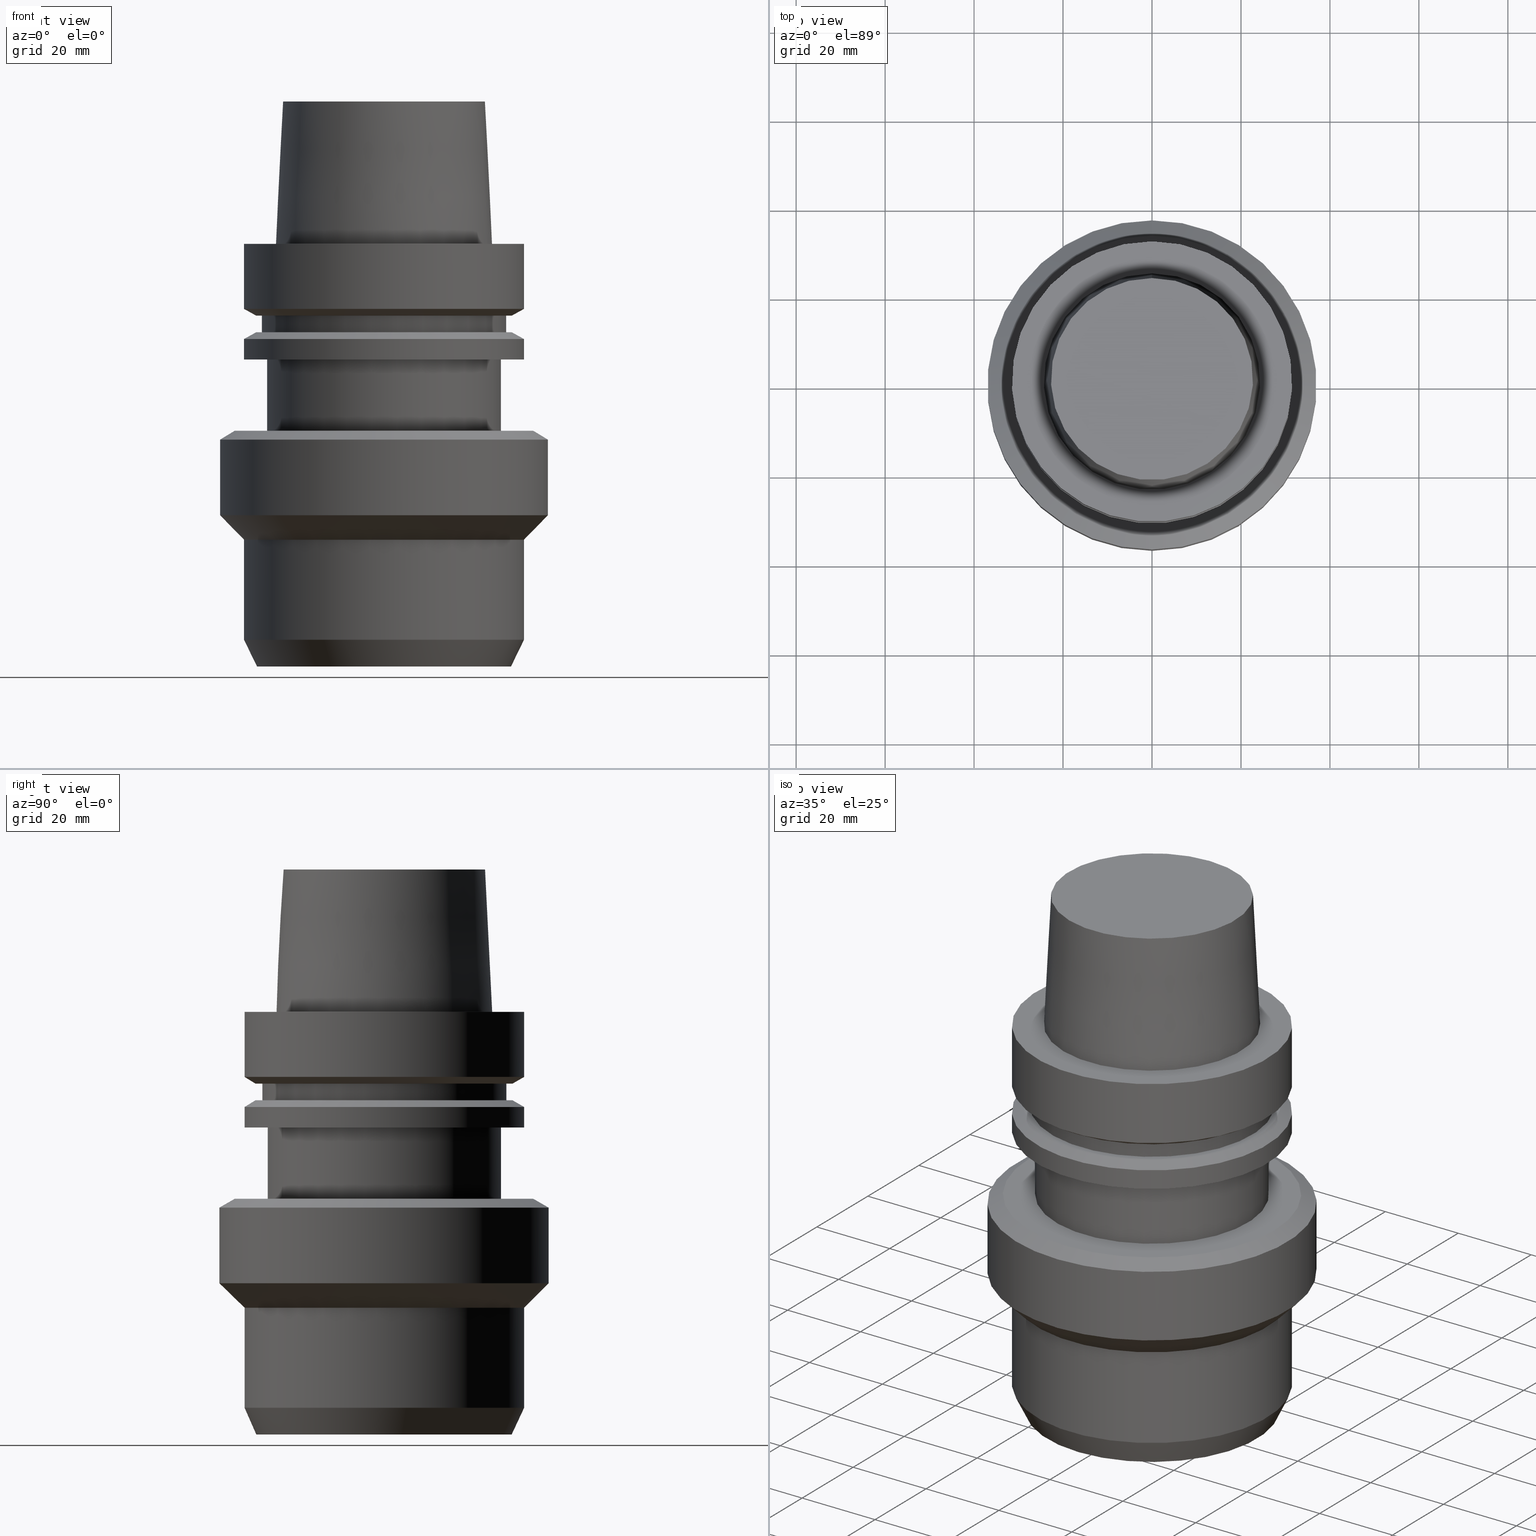
[diagram: canonical four-view strip — front | top / right | iso, engineering-drawing reading convention]
A machine part, canonical four-view strip (front | top / right | iso — engineering-drawing reading convention). The complete STEP part file that produces these views, byte-faithful:
ISO-10303-21;
HEADER;
FILE_DESCRIPTION((''),'1');
FILE_NAME('T:/00_BIG-HP\X2\FF71FF6FFF8CFF9F\X0\2015/\X2\30C030A630F330ED30FC30C930C730FC30BF\X0\/\X2\FF80FF9EFF73FF9DFF9BFF70FF84FF9EFF83FF9EFF70FF80\X0\2015/03_STP\X2\30C730FC30BF\X0\/LINK\X2\7528FF83FF9EFF70FF80FF8EFF99FF80FF9E\X0\/CK\X2\FF8DFF6FFF84FF9E30FBFF71FF78FF7EFF7BFF98\X0\/11_CK\X2\8D85786CFF7DFF84FF9AFF70FF84FF7CFF6CFF9DFF78\X0\/02_CK\X2\8D85786C\X0\ST\X2\7528FF8AFF72FF84FF9EFF9BFF81FF6CFF6FFF78\X0\/HSK-A63-HDC31-95.stp','2017-03-29T05:48:06',(''),(''),'Spatial Interop R21 SP3','Kubotek KeyCreator 2011 V10.0.2 (22737)',' ');
FILE_SCHEMA(('automotive_design'));
ENDSEC;
DATA;
#1=MECHANICAL_DESIGN_GEOMETRIC_PRESENTATION_REPRESENTATION(' ',(#10,#11,#12,#13,#14,#15,#16,#17,#18,#19,#20,#21,#22,#23,#24,#25,#26,#27,#28,#29,#30,#31,#32,#33,#34,#35,#36,#37,#38,#39,#40,#41,#42,#43,#44,#45,#46,#47),#6);
#2=PRODUCT_DEFINITION_CONTEXT('',#48,'design');
#3=APPLICATION_PROTOCOL_DEFINITION('INTERNATIONAL STANDARD','automotive_design',1994,#48);
#4=PRODUCT_CATEGORY_RELATIONSHIP('NONE','NONE',#49,#50);
#5=SHAPE_DEFINITION_REPRESENTATION(#51,#52);
#6= (GEOMETRIC_REPRESENTATION_CONTEXT(3)GLOBAL_UNCERTAINTY_ASSIGNED_CONTEXT((#55))GLOBAL_UNIT_ASSIGNED_CONTEXT((#57,#58,#59))REPRESENTATION_CONTEXT('NONE','WORKSPACE'));
#10=STYLED_ITEM('',(#61,#62),#63);
#11=STYLED_ITEM('',(#64,#65),#66);
#12=STYLED_ITEM('',(#67,#68),#69);
#13=STYLED_ITEM('',(#70,#71),#72);
#14=STYLED_ITEM('',(#73,#74),#75);
#15=STYLED_ITEM('',(#76),#77);
#16=STYLED_ITEM('',(#78,#79),#80);
#17=STYLED_ITEM('',(#81),#82);
#18=STYLED_ITEM('',(#83,#84),#85);
#19=STYLED_ITEM('',(#86),#87);
#20=STYLED_ITEM('',(#88),#89);
#21=STYLED_ITEM('',(#90,#91),#92);
#22=STYLED_ITEM('',(#93),#94);
#23=STYLED_ITEM('',(#95,#96),#97);
#24=STYLED_ITEM('',(#98,#99),#100);
#25=STYLED_ITEM('',(#101),#102);
#26=STYLED_ITEM('',(#103,#104),#105);
#27=STYLED_ITEM('',(#106,#107),#108);
#28=STYLED_ITEM('',(#109),#110);
#29=STYLED_ITEM('',(#111),#112);
#30=STYLED_ITEM('',(#113),#114);
#31=STYLED_ITEM('',(#115),#116);
#32=STYLED_ITEM('',(#117,#118),#119);
#33=STYLED_ITEM('',(#120,#121),#122);
#34=STYLED_ITEM('',(#123,#124),#125);
#35=STYLED_ITEM('',(#126),#127);
#36=STYLED_ITEM('',(#128),#129);
#37=STYLED_ITEM('',(#130,#131),#132);
#38=STYLED_ITEM('',(#133),#134);
#39=STYLED_ITEM('',(#135,#136),#137);
#40=STYLED_ITEM('',(#138,#139),#140);
#41=STYLED_ITEM('',(#141),#142);
#42=STYLED_ITEM('',(#143),#144);
#43=STYLED_ITEM('',(#145,#146),#147);
#44=STYLED_ITEM('',(#148,#149),#150);
#45=STYLED_ITEM('',(#151),#152);
#46=STYLED_ITEM('',(#153),#154);
#47=STYLED_ITEM('',(#155),#156);
#48=APPLICATION_CONTEXT(' ');
#49=PRODUCT_CATEGORY('part','NONE');
#50=PRODUCT_RELATED_PRODUCT_CATEGORY('detail',' ',(#157));
#51=PRODUCT_DEFINITION_SHAPE('NONE','NONE',#158);
#52=ADVANCED_BREP_SHAPE_REPRESENTATION('Unnamed[1]',(#75,#159),#6);
#55=UNCERTAINTY_MEASURE_WITH_UNIT(LENGTH_MEASURE(1.0E-006),#57,'','');
#57= (CONVERSION_BASED_UNIT('MILLIMETRE',#162)LENGTH_UNIT()NAMED_UNIT(#165));
#58= (NAMED_UNIT(#167)PLANE_ANGLE_UNIT()SI_UNIT($,.RADIAN.));
#59= (NAMED_UNIT(#167)SOLID_ANGLE_UNIT()SI_UNIT($,.STERADIAN.));
#61=PRESENTATION_STYLE_ASSIGNMENT((#173));
#62=PRESENTATION_STYLE_ASSIGNMENT((#174));
#63=ADVANCED_FACE('Unnamed[1]',(#175,#176),#177,.T.);
#64=PRESENTATION_STYLE_ASSIGNMENT((#178));
#65=PRESENTATION_STYLE_ASSIGNMENT((#179));
#66=ADVANCED_FACE('Unnamed[1]',(#180,#181),#182,.T.);
#67=PRESENTATION_STYLE_ASSIGNMENT((#183));
#68=PRESENTATION_STYLE_ASSIGNMENT((#184));
#69=ADVANCED_FACE('Unnamed[1]',(#185,#186),#187,.T.);
#70=PRESENTATION_STYLE_ASSIGNMENT((#188));
#71=PRESENTATION_STYLE_ASSIGNMENT((#189));
#72=ADVANCED_FACE('Unnamed[1]',(#190,#191),#192,.T.);
#73=PRESENTATION_STYLE_ASSIGNMENT((#193));
#74=PRESENTATION_STYLE_ASSIGNMENT((#194));
#75=MANIFOLD_SOLID_BREP('Unnamed[1]',#195);
#76=PRESENTATION_STYLE_ASSIGNMENT((#196));
#77=EDGE_CURVE('Unnamed[1]',#197,#197,#198,.T.);
#78=PRESENTATION_STYLE_ASSIGNMENT((#199));
#79=PRESENTATION_STYLE_ASSIGNMENT((#200));
#80=ADVANCED_FACE('Unnamed[1]',(#201,#202),#203,.T.);
#81=PRESENTATION_STYLE_ASSIGNMENT((#204));
#82=EDGE_CURVE('Unnamed[1]',#205,#205,#206,.T.);
#83=PRESENTATION_STYLE_ASSIGNMENT((#207));
#84=PRESENTATION_STYLE_ASSIGNMENT((#208));
#85=ADVANCED_FACE('Unnamed[1]',(#209),#210,.T.);
#86=PRESENTATION_STYLE_ASSIGNMENT((#211));
#87=EDGE_CURVE('Unnamed[1]',#212,#212,#213,.T.);
#88=PRESENTATION_STYLE_ASSIGNMENT((#214));
#89=EDGE_CURVE('Unnamed[1]',#215,#215,#216,.T.);
#90=PRESENTATION_STYLE_ASSIGNMENT((#217));
#91=PRESENTATION_STYLE_ASSIGNMENT((#218));
#92=ADVANCED_FACE('Unnamed[1]',(#219,#220),#221,.T.);
#93=PRESENTATION_STYLE_ASSIGNMENT((#222));
#94=EDGE_CURVE('Unnamed[1]',#223,#223,#224,.T.);
#95=PRESENTATION_STYLE_ASSIGNMENT((#225));
#96=PRESENTATION_STYLE_ASSIGNMENT((#226));
#97=ADVANCED_FACE('Unnamed[1]',(#227,#228),#229,.T.);
#98=PRESENTATION_STYLE_ASSIGNMENT((#230));
#99=PRESENTATION_STYLE_ASSIGNMENT((#231));
#100=ADVANCED_FACE('Unnamed[1]',(#232,#233),#234,.T.);
#101=PRESENTATION_STYLE_ASSIGNMENT((#235));
#102=EDGE_CURVE('Unnamed[1]',#236,#236,#237,.T.);
#103=PRESENTATION_STYLE_ASSIGNMENT((#238));
#104=PRESENTATION_STYLE_ASSIGNMENT((#239));
#105=ADVANCED_FACE('Unnamed[1]',(#240,#241),#242,.T.);
#106=PRESENTATION_STYLE_ASSIGNMENT((#243));
#107=PRESENTATION_STYLE_ASSIGNMENT((#244));
#108=ADVANCED_FACE('Unnamed[1]',(#245,#246),#247,.T.);
#109=PRESENTATION_STYLE_ASSIGNMENT((#248));
#110=EDGE_CURVE('Unnamed[1]',#249,#249,#250,.T.);
#111=PRESENTATION_STYLE_ASSIGNMENT((#251));
#112=EDGE_CURVE('Unnamed[1]',#252,#252,#253,.T.);
#113=PRESENTATION_STYLE_ASSIGNMENT((#254));
#114=EDGE_CURVE('Unnamed[1]',#255,#255,#256,.T.);
#115=PRESENTATION_STYLE_ASSIGNMENT((#257));
#116=EDGE_CURVE('Unnamed[1]',#258,#258,#259,.T.);
#117=PRESENTATION_STYLE_ASSIGNMENT((#260));
#118=PRESENTATION_STYLE_ASSIGNMENT((#261));
#119=ADVANCED_FACE('Unnamed[1]',(#262,#263),#264,.T.);
#120=PRESENTATION_STYLE_ASSIGNMENT((#265));
#121=PRESENTATION_STYLE_ASSIGNMENT((#266));
#122=ADVANCED_FACE('Unnamed[1]',(#267,#268),#269,.T.);
#123=PRESENTATION_STYLE_ASSIGNMENT((#270));
#124=PRESENTATION_STYLE_ASSIGNMENT((#271));
#125=ADVANCED_FACE('Unnamed[1]',(#272,#273),#274,.T.);
#126=PRESENTATION_STYLE_ASSIGNMENT((#275));
#127=EDGE_CURVE('Unnamed[1]',#276,#276,#277,.T.);
#128=PRESENTATION_STYLE_ASSIGNMENT((#278));
#129=EDGE_CURVE('Unnamed[1]',#279,#279,#280,.T.);
#130=PRESENTATION_STYLE_ASSIGNMENT((#281));
#131=PRESENTATION_STYLE_ASSIGNMENT((#282));
#132=ADVANCED_FACE('Unnamed[1]',(#283,#284),#285,.T.);
#133=PRESENTATION_STYLE_ASSIGNMENT((#286));
#134=EDGE_CURVE('Unnamed[1]',#287,#287,#288,.T.);
#135=PRESENTATION_STYLE_ASSIGNMENT((#289));
#136=PRESENTATION_STYLE_ASSIGNMENT((#290));
#137=ADVANCED_FACE('Unnamed[1]',(#291,#292),#293,.T.);
#138=PRESENTATION_STYLE_ASSIGNMENT((#294));
#139=PRESENTATION_STYLE_ASSIGNMENT((#295));
#140=ADVANCED_FACE('Unnamed[1]',(#296,#297),#298,.T.);
#141=PRESENTATION_STYLE_ASSIGNMENT((#299));
#142=EDGE_CURVE('Unnamed[1]',#300,#300,#301,.T.);
#143=PRESENTATION_STYLE_ASSIGNMENT((#302));
#144=EDGE_CURVE('Unnamed[1]',#303,#303,#304,.T.);
#145=PRESENTATION_STYLE_ASSIGNMENT((#305));
#146=PRESENTATION_STYLE_ASSIGNMENT((#306));
#147=ADVANCED_FACE('Unnamed[1]',(#307,#308),#309,.T.);
#148=PRESENTATION_STYLE_ASSIGNMENT((#310));
#149=PRESENTATION_STYLE_ASSIGNMENT((#311));
#150=ADVANCED_FACE('Unnamed[1]',(#312),#313,.T.);
#151=PRESENTATION_STYLE_ASSIGNMENT((#314));
#152=EDGE_CURVE('Unnamed[1]',#315,#315,#316,.T.);
#153=PRESENTATION_STYLE_ASSIGNMENT((#317));
#154=EDGE_CURVE('Unnamed[1]',#318,#318,#319,.T.);
#155=PRESENTATION_STYLE_ASSIGNMENT((#320));
#156=EDGE_CURVE('Unnamed[1]',#321,#321,#322,.T.);
#157=PRODUCT('Unnamed[1]','Unnamed[1]','PART-Unnamed[1]-DESC',(#323));
#158=PRODUCT_DEFINITION('NONE','NONE',#324,#2);
#159=AXIS2_PLACEMENT_3D('',#325,#326,#327);
#162=LENGTH_MEASURE_WITH_UNIT(LENGTH_MEASURE(1.0),#328);
#165=DIMENSIONAL_EXPONENTS(1.0,0.0,0.0,0.0,0.0,0.0,0.0);
#167=DIMENSIONAL_EXPONENTS(0.0,0.0,0.0,0.0,0.0,0.0,0.0);
#173=SURFACE_STYLE_USAGE(.BOTH.,#329);
#174=CURVE_STYLE('',#330,POSITIVE_LENGTH_MEASURE(1000.0),#331);
#175=FACE_BOUND('',#332,.T.);
#176=FACE_BOUND('',#333,.T.);
#177=CYLINDRICAL_SURFACE('',#334,26.3);
#178=SURFACE_STYLE_USAGE(.BOTH.,#335);
#179=CURVE_STYLE('',#336,POSITIVE_LENGTH_MEASURE(1000.0),#337);
#180=FACE_OUTER_BOUND('',#338,.T.);
#181=FACE_BOUND('',#339,.T.);
#182=PLANE('',#340);
#183=SURFACE_STYLE_USAGE(.BOTH.,#341);
#184=CURVE_STYLE('',#342,POSITIVE_LENGTH_MEASURE(1000.0),#343);
#185=FACE_BOUND('',#344,.T.);
#186=FACE_BOUND('',#345,.T.);
#187=CYLINDRICAL_SURFACE('',#346,27.4999999999994);
#188=SURFACE_STYLE_USAGE(.BOTH.,#347);
#189=CURVE_STYLE('',#348,POSITIVE_LENGTH_MEASURE(1000.0),#349);
#190=FACE_OUTER_BOUND('',#350,.T.);
#191=FACE_BOUND('',#351,.T.);
#192=PLANE('',#352);
#193=SURFACE_STYLE_USAGE(.BOTH.,#353);
#194=CURVE_STYLE('',#354,POSITIVE_LENGTH_MEASURE(1000.0),#355);
#195=CLOSED_SHELL('',(#150,#140,#108,#92,#80,#147,#69,#72,#100,#137,#119,#63,#66,#132,#97,#122,#125,#105,#85));
#196=CURVE_STYLE('',#356,POSITIVE_LENGTH_MEASURE(1000.0),#357);
#197=VERTEX_POINT('',#358);
#198=CIRCLE('',#359,27.5);
#199=SURFACE_STYLE_USAGE(.BOTH.,#360);
#200=CURVE_STYLE('',#361,POSITIVE_LENGTH_MEASURE(1000.0),#362);
#201=FACE_BOUND('',#363,.T.);
#202=FACE_BOUND('',#364,.T.);
#203=CONICAL_SURFACE('',#365,30.1987976320959,1.04719755119657);
#204=CURVE_STYLE('',#366,POSITIVE_LENGTH_MEASURE(1000.0),#367);
#205=VERTEX_POINT('',#368);
#206=CIRCLE('',#369,24.315);
#207=SURFACE_STYLE_USAGE(.BOTH.,#370);
#208=CURVE_STYLE('',#371,POSITIVE_LENGTH_MEASURE(1000.0),#372);
#209=FACE_OUTER_BOUND('',#373,.T.);
#210=PLANE('',#374);
#211=CURVE_STYLE('',#375,POSITIVE_LENGTH_MEASURE(1000.0),#376);
#212=VERTEX_POINT('',#377);
#213=CIRCLE('',#378,31.5);
#214=CURVE_STYLE('',#379,POSITIVE_LENGTH_MEASURE(1000.0),#380);
#215=VERTEX_POINT('',#381);
#216=CIRCLE('',#382,33.5358983848622);
#217=SURFACE_STYLE_USAGE(.BOTH.,#383);
#218=CURVE_STYLE('',#384,POSITIVE_LENGTH_MEASURE(1000.0),#385);
#219=FACE_BOUND('',#386,.T.);
#220=FACE_BOUND('',#387,.T.);
#221=CYLINDRICAL_SURFACE('',#388,31.5);
#222=CURVE_STYLE('',#389,POSITIVE_LENGTH_MEASURE(1000.0),#390);
#223=VERTEX_POINT('',#391);
#224=CIRCLE('',#392,28.7021540510708);
#225=SURFACE_STYLE_USAGE(.BOTH.,#393);
#226=CURVE_STYLE('',#394,POSITIVE_LENGTH_MEASURE(1000.0),#395);
#227=FACE_BOUND('',#396,.T.);
#228=FACE_BOUND('',#397,.T.);
#229=CYLINDRICAL_SURFACE('',#398,37.0);
#230=SURFACE_STYLE_USAGE(.BOTH.,#399);
#231=CURVE_STYLE('',#400,POSITIVE_LENGTH_MEASURE(1000.0),#401);
#232=FACE_BOUND('',#402,.T.);
#233=FACE_BOUND('',#403,.T.);
#234=CONICAL_SURFACE('',#404,30.1987976320959,1.04719755119657);
#235=CURVE_STYLE('',#405,POSITIVE_LENGTH_MEASURE(1000.0),#406);
#236=VERTEX_POINT('',#407);
#237=CIRCLE('',#408,31.5000000000002);
#238=SURFACE_STYLE_USAGE(.BOTH.,#409);
#239=CURVE_STYLE('',#410,POSITIVE_LENGTH_MEASURE(1000.0),#411);
#240=FACE_BOUND('',#412,.T.);
#241=FACE_BOUND('',#413,.T.);
#242=CONICAL_SURFACE('',#414,30.1010770255355,0.436332312998494);
#243=SURFACE_STYLE_USAGE(.BOTH.,#415);
#244=CURVE_STYLE('',#416,POSITIVE_LENGTH_MEASURE(1000.0),#417);
#245=FACE_OUTER_BOUND('',#418,.T.);
#246=FACE_BOUND('',#419,.T.);
#247=PLANE('',#420);
#248=CURVE_STYLE('',#421,POSITIVE_LENGTH_MEASURE(1000.0),#422);
#249=VERTEX_POINT('',#423);
#250=CIRCLE('',#424,37.0000000000001);
#251=CURVE_STYLE('',#425,POSITIVE_LENGTH_MEASURE(1000.0),#426);
#252=VERTEX_POINT('',#427);
#253=CIRCLE('',#428,27.4999999999989);
#254=CURVE_STYLE('',#429,POSITIVE_LENGTH_MEASURE(1000.0),#430);
#255=VERTEX_POINT('',#431);
#256=CIRCLE('',#432,22.715);
#257=CURVE_STYLE('',#433,POSITIVE_LENGTH_MEASURE(1000.0),#434);
#258=VERTEX_POINT('',#435);
#259=CIRCLE('',#436,31.4999999999998);
#260=SURFACE_STYLE_USAGE(.BOTH.,#437);
#261=CURVE_STYLE('',#438,POSITIVE_LENGTH_MEASURE(1000.0),#439);
#262=FACE_BOUND('',#440,.T.);
#263=FACE_OUTER_BOUND('',#441,.T.);
#264=PLANE('',#442);
#265=SURFACE_STYLE_USAGE(.BOTH.,#443);
#266=CURVE_STYLE('',#444,POSITIVE_LENGTH_MEASURE(1000.0),#445);
#267=FACE_BOUND('',#446,.T.);
#268=FACE_BOUND('',#447,.T.);
#269=CONICAL_SURFACE('',#448,34.2500000000001,0.785398163397427);
#270=SURFACE_STYLE_USAGE(.BOTH.,#449);
#271=CURVE_STYLE('',#450,POSITIVE_LENGTH_MEASURE(1000.0),#451);
#272=FACE_BOUND('',#452,.T.);
#273=FACE_BOUND('',#453,.T.);
#274=CYLINDRICAL_SURFACE('',#454,31.5000000000002);
#275=CURVE_STYLE('',#455,POSITIVE_LENGTH_MEASURE(1000.0),#456);
#276=VERTEX_POINT('',#457);
#277=CIRCLE('',#458,36.9999999999999);
#278=CURVE_STYLE('',#459,POSITIVE_LENGTH_MEASURE(1000.0),#460);
#279=VERTEX_POINT('',#461);
#280=CIRCLE('',#462,31.5000000000002);
#281=SURFACE_STYLE_USAGE(.BOTH.,#463);
#282=CURVE_STYLE('',#464,POSITIVE_LENGTH_MEASURE(1000.0),#465);
#283=FACE_BOUND('',#466,.T.);
#284=FACE_BOUND('',#467,.T.);
#285=CONICAL_SURFACE('',#468,35.2679491924311,1.04719755119662);
#286=CURVE_STYLE('',#469,POSITIVE_LENGTH_MEASURE(1000.0),#470);
#287=VERTEX_POINT('',#471);
#288=CIRCLE('',#472,31.5);
#289=SURFACE_STYLE_USAGE(.BOTH.,#473);
#290=CURVE_STYLE('',#474,POSITIVE_LENGTH_MEASURE(1000.0),#475);
#291=FACE_BOUND('',#476,.T.);
#292=FACE_BOUND('',#477,.T.);
#293=CYLINDRICAL_SURFACE('',#478,31.4999999999999);
#294=SURFACE_STYLE_USAGE(.BOTH.,#479);
#295=CURVE_STYLE('',#480,POSITIVE_LENGTH_MEASURE(1000.0),#481);
#296=FACE_BOUND('',#482,.T.);
#297=FACE_BOUND('',#483,.T.);
#298=CONICAL_SURFACE('',#484,23.515,0.0499583957219433);
#299=CURVE_STYLE('',#485,POSITIVE_LENGTH_MEASURE(1000.0),#486);
#300=VERTEX_POINT('',#487);
#301=CIRCLE('',#488,31.5000000000001);
#302=CURVE_STYLE('',#489,POSITIVE_LENGTH_MEASURE(1000.0),#490);
#303=VERTEX_POINT('',#491);
#304=CIRCLE('',#492,26.3);
#305=SURFACE_STYLE_USAGE(.BOTH.,#493);
#306=CURVE_STYLE('',#494,POSITIVE_LENGTH_MEASURE(1000.0),#495);
#307=FACE_BOUND('',#496,.T.);
#308=FACE_OUTER_BOUND('',#497,.T.);
#309=PLANE('',#498);
#310=SURFACE_STYLE_USAGE(.BOTH.,#499);
#311=CURVE_STYLE('',#500,POSITIVE_LENGTH_MEASURE(1000.0),#501);
#312=FACE_OUTER_BOUND('',#502,.T.);
#313=PLANE('',#503);
#314=CURVE_STYLE('',#504,POSITIVE_LENGTH_MEASURE(1000.0),#505);
#315=VERTEX_POINT('',#506);
#316=CIRCLE('',#507,28.8975952641919);
#317=CURVE_STYLE('',#508,POSITIVE_LENGTH_MEASURE(1000.0),#509);
#318=VERTEX_POINT('',#510);
#319=CIRCLE('',#511,26.3);
#320=CURVE_STYLE('',#512,POSITIVE_LENGTH_MEASURE(1000.0),#513);
#321=VERTEX_POINT('',#514);
#322=CIRCLE('',#515,28.8975952641919);
#323=PRODUCT_CONTEXT('',#48,'mechanical');
#324=PRODUCT_DEFINITION_FORMATION_WITH_SPECIFIED_SOURCE(' ','NONE',#157,.NOT_KNOWN.);
#325=CARTESIAN_POINT('',(0.0,0.0,0.0));
#326=DIRECTION('',(0.0,0.0,1.0));
#327=DIRECTION('',(1.0,0.0,0.0));
#328= (NAMED_UNIT(#165)LENGTH_UNIT()SI_UNIT(.MILLI.,.METRE.));
#329=SURFACE_SIDE_STYLE('',(#517));
#330=DRAUGHTING_PRE_DEFINED_CURVE_FONT('continuous');
#331=COLOUR_RGB('',0.0,1.0,0.0);
#332=EDGE_LOOP('',(#518));
#333=EDGE_LOOP('',(#519));
#334=AXIS2_PLACEMENT_3D('',#520,#521,#522);
#335=SURFACE_SIDE_STYLE('',(#523));
#336=DRAUGHTING_PRE_DEFINED_CURVE_FONT('continuous');
#337=COLOUR_RGB('',0.0,1.0,0.0);
#338=EDGE_LOOP('',(#524));
#339=EDGE_LOOP('',(#525));
#340=AXIS2_PLACEMENT_3D('',#526,#527,#528);
#341=SURFACE_SIDE_STYLE('',(#529));
#342=DRAUGHTING_PRE_DEFINED_CURVE_FONT('continuous');
#343=COLOUR_RGB('',0.0,1.0,0.0);
#344=EDGE_LOOP('',(#530));
#345=EDGE_LOOP('',(#531));
#346=AXIS2_PLACEMENT_3D('',#532,#533,#534);
#347=SURFACE_SIDE_STYLE('',(#535));
#348=DRAUGHTING_PRE_DEFINED_CURVE_FONT('continuous');
#349=COLOUR_RGB('',0.0,1.0,0.0);
#350=EDGE_LOOP('',(#536));
#351=EDGE_LOOP('',(#537));
#352=AXIS2_PLACEMENT_3D('',#538,#539,#540);
#353=SURFACE_SIDE_STYLE('',(#541));
#354=DRAUGHTING_PRE_DEFINED_CURVE_FONT('continuous');
#355=COLOUR_RGB('',0.0,1.0,0.0);
#356=DRAUGHTING_PRE_DEFINED_CURVE_FONT('continuous');
#357=COLOUR_RGB('',0.0,1.0,0.0);
#358=CARTESIAN_POINT('',(9.87371481812537E-016,27.5,-16.1249999999997));
#359=AXIS2_PLACEMENT_3D('',#542,#543,#544);
#360=SURFACE_SIDE_STYLE('',(#545));
#361=DRAUGHTING_PRE_DEFINED_CURVE_FONT('continuous');
#362=COLOUR_RGB('',0.0,1.0,0.0);
#363=EDGE_LOOP('',(#546));
#364=EDGE_LOOP('',(#547));
#365=AXIS2_PLACEMENT_3D('',#548,#549,#550);
#366=DRAUGHTING_PRE_DEFINED_CURVE_FONT('continuous');
#367=COLOUR_RGB('',0.0,1.0,0.0);
#368=CARTESIAN_POINT('',(-2.99705514225764E-031,24.315,2.97772869212679E-015));
#369=AXIS2_PLACEMENT_3D('',#551,#552,#553);
#370=SURFACE_SIDE_STYLE('',(#554));
#371=DRAUGHTING_PRE_DEFINED_CURVE_FONT('continuous');
#372=COLOUR_RGB('',0.0,1.0,0.0);
#373=EDGE_LOOP('',(#555));
#374=AXIS2_PLACEMENT_3D('',#556,#557,#558);
#375=DRAUGHTING_PRE_DEFINED_CURVE_FONT('continuous');
#376=COLOUR_RGB('',0.0,1.0,0.0);
#377=CARTESIAN_POINT('',(8.95369947681261E-016,31.5,-14.6225009252407));
#378=AXIS2_PLACEMENT_3D('',#559,#560,#561);
#379=DRAUGHTING_PRE_DEFINED_CURVE_FONT('continuous');
#380=COLOUR_RGB('',0.0,1.0,0.0);
#381=CARTESIAN_POINT('',(2.57175827820699E-015,33.5358983848622,-41.99999999996));
#382=AXIS2_PLACEMENT_3D('',#562,#563,#564);
#383=SURFACE_SIDE_STYLE('',(#565));
#384=DRAUGHTING_PRE_DEFINED_CURVE_FONT('continuous');
#385=COLOUR_RGB('',0.0,1.0,0.0);
#386=EDGE_LOOP('',(#566));
#387=EDGE_LOOP('',(#567));
#388=AXIS2_PLACEMENT_3D('',#568,#569,#570);
#389=DRAUGHTING_PRE_DEFINED_CURVE_FONT('continuous');
#390=COLOUR_RGB('',0.0,1.0,0.0);
#391=CARTESIAN_POINT('',(5.81707229594996E-015,28.7021540510708,-95.0000000000005));
#392=AXIS2_PLACEMENT_3D('',#571,#572,#573);
#393=SURFACE_SIDE_STYLE('',(#574));
#394=DRAUGHTING_PRE_DEFINED_CURVE_FONT('continuous');
#395=COLOUR_RGB('',0.0,1.0,0.0);
#396=EDGE_LOOP('',(#575));
#397=EDGE_LOOP('',(#576));
#398=AXIS2_PLACEMENT_3D('',#577,#578,#579);
#399=SURFACE_SIDE_STYLE('',(#580));
#400=DRAUGHTING_PRE_DEFINED_CURVE_FONT('continuous');
#401=COLOUR_RGB('',0.0,1.0,0.0);
#402=EDGE_LOOP('',(#581));
#403=EDGE_LOOP('',(#582));
#404=AXIS2_PLACEMENT_3D('',#583,#584,#585);
#405=DRAUGHTING_PRE_DEFINED_CURVE_FONT('continuous');
#406=COLOUR_RGB('',0.0,1.0,0.0);
#407=CARTESIAN_POINT('',(5.44967825620575E-015,31.5000000000002,-89.0000000000005));
#408=AXIS2_PLACEMENT_3D('',#586,#587,#588);
#409=SURFACE_SIDE_STYLE('',(#589));
#410=DRAUGHTING_PRE_DEFINED_CURVE_FONT('continuous');
#411=COLOUR_RGB('',0.0,1.0,0.0);
#412=EDGE_LOOP('',(#590));
#413=EDGE_LOOP('',(#591));
#414=AXIS2_PLACEMENT_3D('',#592,#593,#594);
#415=SURFACE_SIDE_STYLE('',(#595));
#416=DRAUGHTING_PRE_DEFINED_CURVE_FONT('continuous');
#417=COLOUR_RGB('',0.0,1.0,0.0);
#418=EDGE_LOOP('',(#596));
#419=EDGE_LOOP('',(#597));
#420=AXIS2_PLACEMENT_3D('',#598,#599,#600);
#421=DRAUGHTING_PRE_DEFINED_CURVE_FONT('continuous');
#422=COLOUR_RGB('',0.0,1.0,0.0);
#423=CARTESIAN_POINT('',(3.73517273739954E-015,37.0000000000001,-61.0000000000018));
#424=AXIS2_PLACEMENT_3D('',#601,#602,#603);
#425=DRAUGHTING_PRE_DEFINED_CURVE_FONT('continuous');
#426=COLOUR_RGB('',0.0,1.0,0.0);
#427=CARTESIAN_POINT('',(1.21699275665276E-015,27.4999999999989,-19.8750000000013));
#428=AXIS2_PLACEMENT_3D('',#604,#605,#606);
#429=DRAUGHTING_PRE_DEFINED_CURVE_FONT('continuous');
#430=COLOUR_RGB('',0.0,1.0,0.0);
#431=CARTESIAN_POINT('',(-1.95943487863576E-015,22.715,32.0));
#432=AXIS2_PLACEMENT_3D('',#607,#608,#609);
#433=DRAUGHTING_PRE_DEFINED_CURVE_FONT('continuous');
#434=COLOUR_RGB('',0.0,1.0,0.0);
#435=CARTESIAN_POINT('',(1.59204083889155E-015,31.4999999999998,-25.9999999999999));
#436=AXIS2_PLACEMENT_3D('',#610,#611,#612);
#437=SURFACE_SIDE_STYLE('',(#613));
#438=DRAUGHTING_PRE_DEFINED_CURVE_FONT('continuous');
#439=COLOUR_RGB('',0.0,1.0,0.0);
#440=EDGE_LOOP('',(#614));
#441=EDGE_LOOP('',(#615));
#442=AXIS2_PLACEMENT_3D('',#616,#617,#618);
#443=SURFACE_SIDE_STYLE('',(#619));
#444=DRAUGHTING_PRE_DEFINED_CURVE_FONT('continuous');
#445=COLOUR_RGB('',0.0,1.0,0.0);
#446=EDGE_LOOP('',(#620));
#447=EDGE_LOOP('',(#621));
#448=AXIS2_PLACEMENT_3D('',#622,#623,#624);
#449=SURFACE_SIDE_STYLE('',(#625));
#450=DRAUGHTING_PRE_DEFINED_CURVE_FONT('continuous');
#451=COLOUR_RGB('',0.0,1.0,0.0);
#452=EDGE_LOOP('',(#626));
#453=EDGE_LOOP('',(#627));
#454=AXIS2_PLACEMENT_3D('',#628,#629,#630);
#455=DRAUGHTING_PRE_DEFINED_CURVE_FONT('continuous');
#456=COLOUR_RGB('',0.0,1.0,0.0);
#457=CARTESIAN_POINT('',(2.69422295812172E-015,36.9999999999999,-43.9999999999599));
#458=AXIS2_PLACEMENT_3D('',#631,#632,#633);
#459=DRAUGHTING_PRE_DEFINED_CURVE_FONT('continuous');
#460=COLOUR_RGB('',0.0,1.0,0.0);
#461=CARTESIAN_POINT('',(4.07195060716506E-015,31.5000000000002,-66.5000000000019));
#462=AXIS2_PLACEMENT_3D('',#634,#635,#636);
#463=SURFACE_SIDE_STYLE('',(#637));
#464=DRAUGHTING_PRE_DEFINED_CURVE_FONT('continuous');
#465=COLOUR_RGB('',0.0,1.0,0.0);
#466=EDGE_LOOP('',(#638));
#467=EDGE_LOOP('',(#639));
#468=AXIS2_PLACEMENT_3D('',#640,#641,#642);
#469=DRAUGHTING_PRE_DEFINED_CURVE_FONT('continuous');
#470=COLOUR_RGB('',0.0,1.0,0.0);
#471=CARTESIAN_POINT('',(1.30899429078397E-015,31.5,-21.3774990747592));
#472=AXIS2_PLACEMENT_3D('',#643,#644,#645);
#473=SURFACE_SIDE_STYLE('',(#646));
#474=DRAUGHTING_PRE_DEFINED_CURVE_FONT('continuous');
#475=COLOUR_RGB('',0.0,1.0,0.0);
#476=EDGE_LOOP('',(#647));
#477=EDGE_LOOP('',(#648));
#478=AXIS2_PLACEMENT_3D('',#649,#650,#651);
#479=SURFACE_SIDE_STYLE('',(#652));
#480=DRAUGHTING_PRE_DEFINED_CURVE_FONT('continuous');
#481=COLOUR_RGB('',0.0,1.0,0.0);
#482=EDGE_LOOP('',(#653));
#483=EDGE_LOOP('',(#654));
#484=AXIS2_PLACEMENT_3D('',#655,#656,#657);
#485=DRAUGHTING_PRE_DEFINED_CURVE_FONT('continuous');
#486=COLOUR_RGB('',0.0,1.0,0.0);
#487=CARTESIAN_POINT('',(-3.88267476788467E-031,31.5000000000001,3.85763741731417E-015));
#488=AXIS2_PLACEMENT_3D('',#658,#659,#660);
#489=DRAUGHTING_PRE_DEFINED_CURVE_FONT('continuous');
#490=COLOUR_RGB('',0.0,1.0,0.0);
#491=CARTESIAN_POINT('',(1.59204083889154E-015,26.3,-25.9999999999997));
#492=AXIS2_PLACEMENT_3D('',#661,#662,#663);
#493=SURFACE_SIDE_STYLE('',(#664));
#494=DRAUGHTING_PRE_DEFINED_CURVE_FONT('continuous');
#495=COLOUR_RGB('',0.0,1.0,0.0);
#496=EDGE_LOOP('',(#665));
#497=EDGE_LOOP('',(#666));
#498=AXIS2_PLACEMENT_3D('',#667,#668,#669);
#499=SURFACE_SIDE_STYLE('',(#670));
#500=DRAUGHTING_PRE_DEFINED_CURVE_FONT('continuous');
#501=COLOUR_RGB('',0.0,1.0,0.0);
#502=EDGE_LOOP('',(#671));
#503=AXIS2_PLACEMENT_3D('',#672,#673,#674);
#504=DRAUGHTING_PRE_DEFINED_CURVE_FONT('continuous');
#505=COLOUR_RGB('',0.0,1.0,0.0);
#506=CARTESIAN_POINT('',(1.21699275665268E-015,28.8975952641919,-19.875));
#507=AXIS2_PLACEMENT_3D('',#675,#676,#677);
#508=DRAUGHTING_PRE_DEFINED_CURVE_FONT('continuous');
#509=COLOUR_RGB('',0.0,1.0,0.0);
#510=CARTESIAN_POINT('',(2.571758278207E-015,26.3,-41.9999999999601));
#511=AXIS2_PLACEMENT_3D('',#678,#679,#680);
#512=DRAUGHTING_PRE_DEFINED_CURVE_FONT('continuous');
#513=COLOUR_RGB('',0.0,1.0,0.0);
#514=CARTESIAN_POINT('',(9.87371481812551E-016,28.8975952641919,-16.125));
#515=AXIS2_PLACEMENT_3D('',#681,#682,#683);
#517=SURFACE_STYLE_FILL_AREA(#684);
#518=ORIENTED_EDGE('',*,*,#154,.F.);
#519=ORIENTED_EDGE('',*,*,#144,.T.);
#520=CARTESIAN_POINT('',(2.08189955854927E-015,6.98958712928623E-015,-33.9999999999799));
#521=DIRECTION('',(6.12323399573677E-017,7.79108829899064E-017,-1.0));
#522=DIRECTION('',(-9.59781840438566E-033,1.0,7.79108829899063E-017));
#523=SURFACE_STYLE_FILL_AREA(#685);
#524=ORIENTED_EDGE('',*,*,#89,.F.);
#525=ORIENTED_EDGE('',*,*,#154,.T.);
#526=CARTESIAN_POINT('',(2.571758278207E-015,29.9179491924311,-41.9999999999601));
#527=DIRECTION('',(-6.12323399573677E-017,-6.01427822925854E-015,1.0));
#528=DIRECTION('',(3.73095481862923E-031,-1.0,-6.01427822925854E-015));
#529=SURFACE_STYLE_FILL_AREA(#686);
#530=ORIENTED_EDGE('',*,*,#112,.F.);
#531=ORIENTED_EDGE('',*,*,#77,.T.);
#532=CARTESIAN_POINT('',(1.10218211923265E-015,5.74301300144934E-015,-18.0000000000005));
#533=DIRECTION('',(6.12323399573677E-017,7.79108829899064E-017,-1.0));
#534=DIRECTION('',(-9.59781840438566E-033,1.0,7.79108829899063E-017));
#535=SURFACE_STYLE_FILL_AREA(#687);
#536=ORIENTED_EDGE('',*,*,#152,.F.);
#537=ORIENTED_EDGE('',*,*,#112,.T.);
#538=CARTESIAN_POINT('',(1.21699275665272E-015,28.1987976320954,-19.8750000000006));
#539=DIRECTION('',(-6.12323399573677E-017,-9.58463617675421E-013,1.0));
#540=DIRECTION('',(5.86937972270006E-029,-1.0,-9.58463617675421E-013));
#541=SURFACE_STYLE_FILL_AREA(#688);
#542=CARTESIAN_POINT('',(9.87371481812538E-016,5.59693009584321E-015,-16.1249999999997));
#543=DIRECTION('',(6.12323399573677E-017,7.79108829899064E-017,-1.0));
#544=DIRECTION('',(-9.59781840438566E-033,1.0,7.79108829899063E-017));
#545=SURFACE_STYLE_FILL_AREA(#689);
#546=ORIENTED_EDGE('',*,*,#156,.F.);
#547=ORIENTED_EDGE('',*,*,#87,.T.);
#548=CARTESIAN_POINT('',(9.41370714746907E-016,5.53839958104022E-015,-15.3737504626203));
#549=DIRECTION('',(-6.12323399573677E-017,-7.79108829899063E-017,1.0));
#550=DIRECTION('',(-9.59781840438566E-033,1.0,7.79108829899063E-017));
#551=CARTESIAN_POINT('',(-5.35022365741186E-047,4.34061710763099E-015,5.31572284718453E-031));
#552=DIRECTION('',(6.12323399573677E-017,7.79108829899063E-017,-1.0));
#553=DIRECTION('',(-9.59781840438566E-033,1.0,7.79108829899063E-017));
#554=SURFACE_STYLE_FILL_AREA(#690);
#555=ORIENTED_EDGE('',*,*,#94,.T.);
#556=CARTESIAN_POINT('',(5.81707229594994E-015,14.3510770255354,-95.0000000000002));
#557=DIRECTION('',(6.12323399573677E-017,-1.62163161923233E-014,-1.0));
#558=DIRECTION('',(9.88135833213739E-031,1.0,-1.62163161923233E-014));
#559=CARTESIAN_POINT('',(8.95369947681262E-016,5.47986906623721E-015,-14.6225009252407));
#560=DIRECTION('',(6.12323399573677E-017,7.79108829899063E-017,-1.0));
#561=DIRECTION('',(-9.59781840438566E-033,1.0,7.79108829899063E-017));
#562=CARTESIAN_POINT('',(2.571758278207E-015,7.61287419320394E-015,-41.99999999996));
#563=DIRECTION('',(6.12323399573677E-017,7.79108829899063E-017,-1.0));
#564=DIRECTION('',(-9.59781840438566E-033,1.0,7.79108829899063E-017));
#565=SURFACE_STYLE_FILL_AREA(#691);
#566=ORIENTED_EDGE('',*,*,#87,.F.);
#567=ORIENTED_EDGE('',*,*,#142,.T.);
#568=CARTESIAN_POINT('',(4.47684973840631E-016,4.9102430869341E-015,-7.31125046262035));
#569=DIRECTION('',(6.12323399573677E-017,7.79108829899063E-017,-1.0));
#570=DIRECTION('',(-9.59781840438566E-033,1.0,7.79108829899063E-017));
#571=CARTESIAN_POINT('',(5.81707229594996E-015,1.17421509916721E-014,-95.0000000000005));
#572=DIRECTION('',(6.12323399573677E-017,7.79108829899064E-017,-1.0));
#573=DIRECTION('',(-9.59781840438566E-033,1.0,7.79108829899063E-017));
#574=SURFACE_STYLE_FILL_AREA(#692);
#575=ORIENTED_EDGE('',*,*,#110,.F.);
#576=ORIENTED_EDGE('',*,*,#127,.T.);
#577=CARTESIAN_POINT('',(3.21469784776063E-015,8.43093846459958E-015,-52.4999999999808));
#578=DIRECTION('',(6.12323399573677E-017,7.79108829899063E-017,-1.0));
#579=DIRECTION('',(-9.59781840438566E-033,1.0,7.79108829899063E-017));
#580=SURFACE_STYLE_FILL_AREA(#693);
#581=ORIENTED_EDGE('',*,*,#134,.F.);
#582=ORIENTED_EDGE('',*,*,#152,.T.);
#583=CARTESIAN_POINT('',(1.26299352371833E-015,5.94762642185838E-015,-20.6262495373796));
#584=DIRECTION('',(6.12323399573677E-017,7.79108829899063E-017,-1.0));
#585=DIRECTION('',(-9.59781840438566E-033,1.0,7.79108829899063E-017));
#586=CARTESIAN_POINT('',(5.44967825620575E-015,1.12746856937327E-014,-89.0000000000005));
#587=DIRECTION('',(6.12323399573677E-017,7.79108829899063E-017,-1.0));
#588=DIRECTION('',(-9.59781840438566E-033,1.0,7.79108829899063E-017));
#589=SURFACE_STYLE_FILL_AREA(#694);
#590=ORIENTED_EDGE('',*,*,#94,.F.);
#591=ORIENTED_EDGE('',*,*,#102,.T.);
#592=CARTESIAN_POINT('',(5.63337527607785E-015,1.15084183427024E-014,-92.0000000000005));
#593=DIRECTION('',(-6.12323399573677E-017,-7.79108829899063E-017,1.0));
#594=DIRECTION('',(-9.59781840438566E-033,1.0,7.79108829899063E-017));
#595=SURFACE_STYLE_FILL_AREA(#695);
#596=ORIENTED_EDGE('',*,*,#142,.F.);
#597=ORIENTED_EDGE('',*,*,#82,.T.);
#598=CARTESIAN_POINT('',(-3.43986495507116E-031,27.9075,3.41768305472048E-015));
#599=DIRECTION('',(-6.12323399573677E-017,-1.22464679914735E-016,1.0));
#600=DIRECTION('',(1.23259516440783E-032,-1.0,-1.22464679914735E-016));
#601=CARTESIAN_POINT('',(3.73517273739954E-015,9.09318097001541E-015,-61.0000000000018));
#602=DIRECTION('',(6.12323399573677E-017,7.79108829899063E-017,-1.0));
#603=DIRECTION('',(-9.59781840438566E-033,1.0,7.79108829899063E-017));
#604=CARTESIAN_POINT('',(1.21699275665276E-015,5.88909590705548E-015,-19.8750000000013));
#605=DIRECTION('',(6.12323399573676E-017,7.79108829899063E-017,-1.0));
#606=DIRECTION('',(-9.59781840438566E-033,1.0,7.79108829899063E-017));
#607=CARTESIAN_POINT('',(-1.95943487863576E-015,1.84746885195399E-015,32.0));
#608=DIRECTION('',(6.12323399573676E-017,7.79108829899063E-017,-1.0));
#609=DIRECTION('',(-9.59781840438566E-033,1.0,7.79108829899063E-017));
#610=CARTESIAN_POINT('',(1.59204083889155E-015,6.36630006536854E-015,-25.9999999999999));
#611=DIRECTION('',(6.12323399573676E-017,7.79108829899063E-017,-1.0));
#612=DIRECTION('',(-9.59781840438566E-033,1.0,7.79108829899063E-017));
#613=SURFACE_STYLE_FILL_AREA(#696);
#614=ORIENTED_EDGE('',*,*,#144,.F.);
#615=ORIENTED_EDGE('',*,*,#116,.T.);
#616=CARTESIAN_POINT('',(1.59204083889155E-015,28.8999999999999,-25.9999999999998));
#617=DIRECTION('',(6.12323399573677E-017,-4.01871712910924E-014,-1.0));
#618=DIRECTION('',(2.45592738169036E-030,1.0,-4.01871712910924E-014));
#619=SURFACE_STYLE_FILL_AREA(#697);
#620=ORIENTED_EDGE('',*,*,#129,.F.);
#621=ORIENTED_EDGE('',*,*,#110,.T.);
#622=CARTESIAN_POINT('',(3.9035616722823E-015,9.30743589823766E-015,-63.7500000000018));
#623=DIRECTION('',(-6.12323399573677E-017,-7.79108829899063E-017,1.0));
#624=DIRECTION('',(-9.59781840438566E-033,1.0,7.79108829899063E-017));
#625=SURFACE_STYLE_FILL_AREA(#698);
#626=ORIENTED_EDGE('',*,*,#102,.F.);
#627=ORIENTED_EDGE('',*,*,#129,.T.);
#628=CARTESIAN_POINT('',(4.76081443168541E-015,1.03981882600963E-014,-77.7500000000012));
#629=DIRECTION('',(6.12323399573677E-017,7.79108829899063E-017,-1.0));
#630=DIRECTION('',(-9.59781840438566E-033,1.0,7.79108829899063E-017));
#631=CARTESIAN_POINT('',(2.69422295812172E-015,7.76869595918374E-015,-43.9999999999599));
#632=DIRECTION('',(6.12323399573677E-017,7.79108829899063E-017,-1.0));
#633=DIRECTION('',(-9.59781840438566E-033,1.0,7.79108829899063E-017));
#634=CARTESIAN_POINT('',(4.07195060716506E-015,9.5216908264599E-015,-66.5000000000019));
#635=DIRECTION('',(6.12323399573677E-017,7.79108829899063E-017,-1.0));
#636=DIRECTION('',(-9.59781840438566E-033,1.0,7.79108829899063E-017));
#637=SURFACE_STYLE_FILL_AREA(#699);
#638=ORIENTED_EDGE('',*,*,#127,.F.);
#639=ORIENTED_EDGE('',*,*,#89,.T.);
#640=CARTESIAN_POINT('',(2.63299061816436E-015,7.69078507619384E-015,-42.99999999996));
#641=DIRECTION('',(6.12323399573676E-017,7.79108829899063E-017,-1.0));
#642=DIRECTION('',(-9.59781840438566E-033,1.0,7.79108829899063E-017));
#643=CARTESIAN_POINT('',(1.30899429078397E-015,6.00615693666138E-015,-21.3774990747592));
#644=DIRECTION('',(6.12323399573677E-017,7.79108829899063E-017,-1.0));
#645=DIRECTION('',(-9.59781840438566E-033,1.0,7.79108829899063E-017));
#646=SURFACE_STYLE_FILL_AREA(#700);
#647=ORIENTED_EDGE('',*,*,#116,.F.);
#648=ORIENTED_EDGE('',*,*,#134,.T.);
#649=CARTESIAN_POINT('',(1.45051756483776E-015,6.18622850101496E-015,-23.6887495373796));
#650=DIRECTION('',(6.12323399573676E-017,7.79108829899063E-017,-1.0));
#651=DIRECTION('',(-9.59781840438566E-033,1.0,7.79108829899063E-017));
#652=SURFACE_STYLE_FILL_AREA(#701);
#653=ORIENTED_EDGE('',*,*,#82,.F.);
#654=ORIENTED_EDGE('',*,*,#114,.T.);
#655=CARTESIAN_POINT('',(-9.79717439317882E-016,3.09404297979249E-015,16.0));
#656=DIRECTION('',(6.12323399573677E-017,7.79108829899064E-017,-1.0));
#657=DIRECTION('',(-9.59781840438566E-033,1.0,7.79108829899063E-017));
#658=CARTESIAN_POINT('',(-5.35022365741186E-047,4.34061710763099E-015,5.31572284718453E-031));
#659=DIRECTION('',(6.12323399573677E-017,7.79108829899063E-017,-1.0));
#660=DIRECTION('',(-9.59781840438566E-033,1.0,7.79108829899063E-017));
#661=CARTESIAN_POINT('',(1.59204083889154E-015,6.36630006536853E-015,-25.9999999999997));
#662=DIRECTION('',(6.12323399573677E-017,7.79108829899064E-017,-1.0));
#663=DIRECTION('',(-9.59781840438566E-033,1.0,7.79108829899063E-017));
#664=SURFACE_STYLE_FILL_AREA(#702);
#665=ORIENTED_EDGE('',*,*,#77,.F.);
#666=ORIENTED_EDGE('',*,*,#156,.T.);
#667=CARTESIAN_POINT('',(9.87371481812544E-016,28.1987976320959,-16.1249999999999));
#668=DIRECTION('',(6.12323399573677E-017,-1.65108768595307E-013,-1.0));
#669=DIRECTION('',(1.01051690958394E-029,1.0,-1.65108768595307E-013));
#670=SURFACE_STYLE_FILL_AREA(#703);
#671=ORIENTED_EDGE('',*,*,#114,.F.);
#672=CARTESIAN_POINT('',(-1.95943487863576E-015,11.3575,32.0));
#673=DIRECTION('',(-6.12323399573677E-017,9.72362339746438E-016,1.0));
#674=DIRECTION('',(-5.47128686183263E-032,-1.0,9.72362339746438E-016));
#675=CARTESIAN_POINT('',(1.21699275665268E-015,5.88909590705537E-015,-19.875));
#676=DIRECTION('',(6.12323399573677E-017,7.79108829899063E-017,-1.0));
#677=DIRECTION('',(-9.59781840438566E-033,1.0,7.79108829899063E-017));
#678=CARTESIAN_POINT('',(2.571758278207E-015,7.61287419320394E-015,-41.9999999999601));
#679=DIRECTION('',(6.12323399573677E-017,7.79108829899064E-017,-1.0));
#680=DIRECTION('',(-9.59781840438566E-033,1.0,7.79108829899063E-017));
#681=CARTESIAN_POINT('',(9.87371481812552E-016,5.59693009584322E-015,-16.125));
#682=DIRECTION('',(6.12323399573677E-017,7.79108829899063E-017,-1.0));
#683=DIRECTION('',(-9.59781840438566E-033,1.0,7.79108829899063E-017));
#684=FILL_AREA_STYLE('',(#704));
#685=FILL_AREA_STYLE('',(#705));
#686=FILL_AREA_STYLE('',(#706));
#687=FILL_AREA_STYLE('',(#707));
#688=FILL_AREA_STYLE('',(#708));
#689=FILL_AREA_STYLE('',(#709));
#690=FILL_AREA_STYLE('',(#710));
#691=FILL_AREA_STYLE('',(#711));
#692=FILL_AREA_STYLE('',(#712));
#693=FILL_AREA_STYLE('',(#713));
#694=FILL_AREA_STYLE('',(#714));
#695=FILL_AREA_STYLE('',(#715));
#696=FILL_AREA_STYLE('',(#716));
#697=FILL_AREA_STYLE('',(#717));
#698=FILL_AREA_STYLE('',(#718));
#699=FILL_AREA_STYLE('',(#719));
#700=FILL_AREA_STYLE('',(#720));
#701=FILL_AREA_STYLE('',(#721));
#702=FILL_AREA_STYLE('',(#722));
#703=FILL_AREA_STYLE('',(#723));
#704=FILL_AREA_STYLE_COLOUR('',#724);
#705=FILL_AREA_STYLE_COLOUR('',#725);
#706=FILL_AREA_STYLE_COLOUR('',#726);
#707=FILL_AREA_STYLE_COLOUR('',#727);
#708=FILL_AREA_STYLE_COLOUR('',#728);
#709=FILL_AREA_STYLE_COLOUR('',#729);
#710=FILL_AREA_STYLE_COLOUR('',#730);
#711=FILL_AREA_STYLE_COLOUR('',#731);
#712=FILL_AREA_STYLE_COLOUR('',#732);
#713=FILL_AREA_STYLE_COLOUR('',#733);
#714=FILL_AREA_STYLE_COLOUR('',#734);
#715=FILL_AREA_STYLE_COLOUR('',#735);
#716=FILL_AREA_STYLE_COLOUR('',#736);
#717=FILL_AREA_STYLE_COLOUR('',#737);
#718=FILL_AREA_STYLE_COLOUR('',#738);
#719=FILL_AREA_STYLE_COLOUR('',#739);
#720=FILL_AREA_STYLE_COLOUR('',#740);
#721=FILL_AREA_STYLE_COLOUR('',#741);
#722=FILL_AREA_STYLE_COLOUR('',#742);
#723=FILL_AREA_STYLE_COLOUR('',#743);
#724=COLOUR_RGB('',0.0,1.0,0.0);
#725=COLOUR_RGB('',0.0,1.0,0.0);
#726=COLOUR_RGB('',0.0,1.0,0.0);
#727=COLOUR_RGB('',0.0,1.0,0.0);
#728=COLOUR_RGB('',0.0,1.0,0.0);
#729=COLOUR_RGB('',0.0,1.0,0.0);
#730=COLOUR_RGB('',0.0,1.0,0.0);
#731=COLOUR_RGB('',0.0,1.0,0.0);
#732=COLOUR_RGB('',0.0,1.0,0.0);
#733=COLOUR_RGB('',0.0,1.0,0.0);
#734=COLOUR_RGB('',0.0,1.0,0.0);
#735=COLOUR_RGB('',0.0,1.0,0.0);
#736=COLOUR_RGB('',0.0,1.0,0.0);
#737=COLOUR_RGB('',0.0,1.0,0.0);
#738=COLOUR_RGB('',0.0,1.0,0.0);
#739=COLOUR_RGB('',0.0,1.0,0.0);
#740=COLOUR_RGB('',0.0,1.0,0.0);
#741=COLOUR_RGB('',0.0,1.0,0.0);
#742=COLOUR_RGB('',0.0,1.0,0.0);
#743=COLOUR_RGB('',0.0,1.0,0.0);
ENDSEC;
END-ISO-10303-21;
